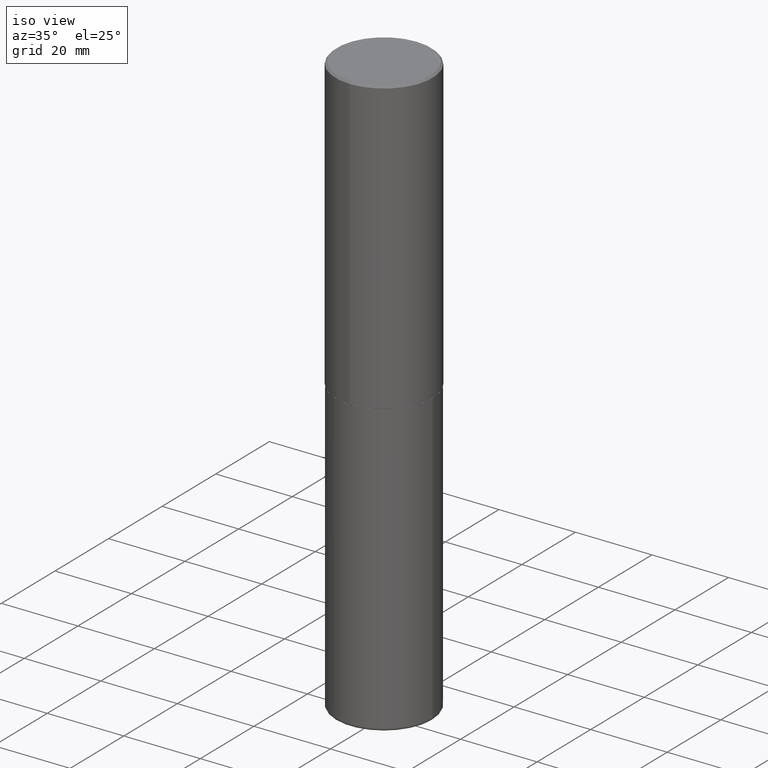
[diagram: clean part render]
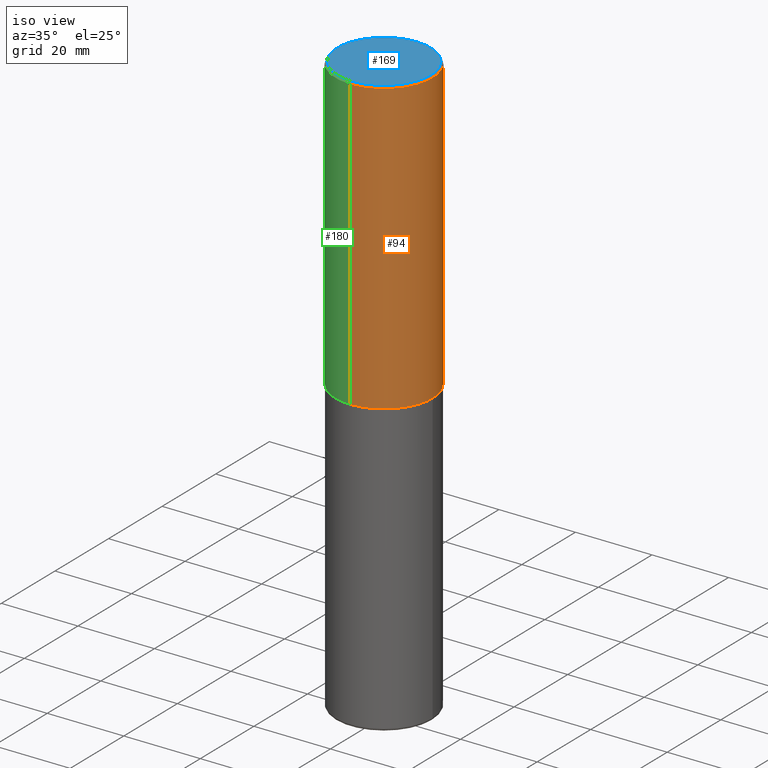
[diagram: same view with three faces highlighted in distinct colors, each labeled with its STEP entity id]
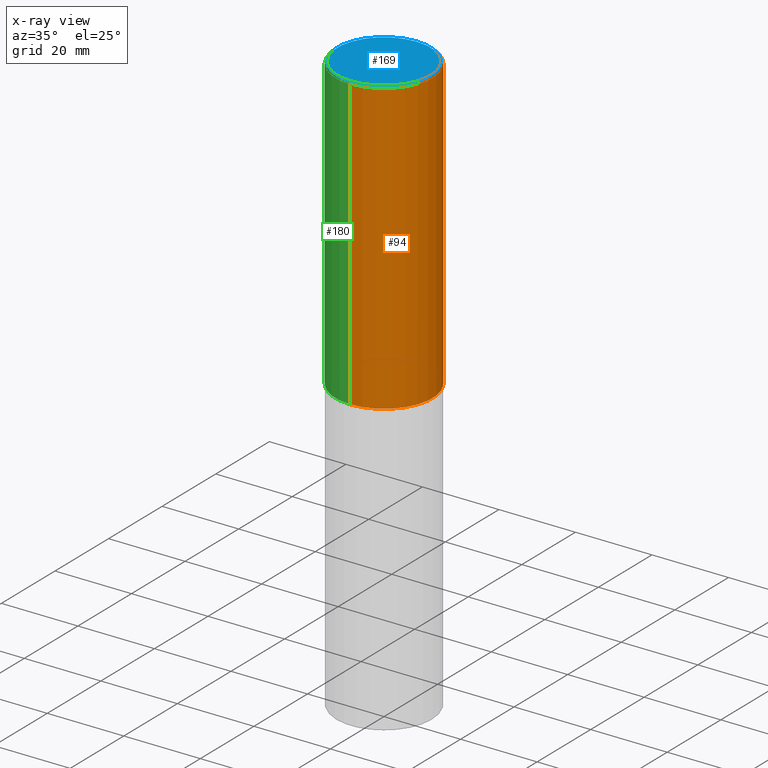
[diagram: x-ray of the same camera — body ghosted, the three highlighted faces saturated]
A machine part, iso view with three faces highlighted in distinct colors.
The next image is the same camera in x-ray (body ghosted, the three faces saturated) — at least one of them is partly hidden behind the body in this view.
Their STEP definitions:

[orange] entity #94 — the highlighted cylindrical surface (partial cylindrical patch) has radius 12.7 mm, axis along (-0, 0, 1).
#2 = CARTESIAN_POINT ( 'NONE',  ( -3.430248998885764992E-15, -0.5000000000000001110, -0.01999999999999835937 ) ) ;
#5 = CARTESIAN_POINT ( 'NONE',  ( 7.332249203065438921E-29, -1.047340385386834930E-14, -2.999000000000000554 ) ) ;
#16 = ORIENTED_EDGE ( 'NONE', *, *, #205, .T. ) ;
#36 = CARTESIAN_POINT ( 'NONE',  ( -3.491481338843133750E-15, -0.5000000000000001110, 1.746149358764313390E-15 ) ) ;
#39 = ORIENTED_EDGE ( 'NONE', *, *, #47, .F. ) ;
#46 = VECTOR ( 'NONE', #119, 39.37007874015748143 ) ;
#47 = EDGE_CURVE ( 'NONE', #320, #143, #68, .T. ) ;
#60 = CYLINDRICAL_SURFACE ( 'NONE', #149, 0.5000000000000001110 ) ;
#68 = CIRCLE ( 'NONE', #276, 0.5000000000000000000 ) ;
#69 = LINE ( 'NONE', #36, #309 ) ;
#78 = CARTESIAN_POINT ( 'NONE',  ( 4.889796067399450837E-31, -6.984597435057287381E-17, -0.02000000000000010797 ) ) ;
#94 = ADVANCED_FACE ( 'NONE', ( #151 ), #60, .T. ) ;
#100 = EDGE_LOOP ( 'NONE', ( #413, #16, #39, #353 ) ) ;
#119 = DIRECTION ( 'NONE',  ( -2.444898033699711931E-29, 3.492298717528626385E-15, 1.000000000000000000 ) ) ;
#121 = CARTESIAN_POINT ( 'NONE',  ( 3.491481338843133355E-15, 0.4999999999999999445, -0.02000000000000185310 ) ) ;
#126 = DIRECTION ( 'NONE',  ( -6.982962677686266711E-15, -1.000000000000000000, 3.278217592397114284E-15 ) ) ;
#143 = VERTEX_POINT ( 'NONE', #121 ) ;
#149 = AXIS2_PLACEMENT_3D ( 'NONE', #278, #345, #187 ) ;
#151 = FACE_OUTER_BOUND ( 'NONE', #100, .T. ) ;
#152 = CARTESIAN_POINT ( 'NONE',  ( -3.491481338843061569E-15, -0.5000000000000107692, -2.998999999999998778 ) ) ;
#187 = DIRECTION ( 'NONE',  ( -6.982962677686265922E-15, -1.000000000000000000, 3.492298717528625990E-15 ) ) ;
#198 = DIRECTION ( 'NONE',  ( -6.982962677686265922E-15, -1.000000000000000000, 3.491643216902136408E-15 ) ) ;
#202 = VERTEX_POINT ( 'NONE', #213 ) ;
#205 = EDGE_CURVE ( 'NONE', #202, #143, #314, .T. ) ;
#209 = DIRECTION ( 'NONE',  ( -2.444898033699712212E-29, 3.492298717528625990E-15, 1.000000000000000000 ) ) ;
#210 = AXIS2_PLACEMENT_3D ( 'NONE', #5, #376, #126 ) ;
#213 = CARTESIAN_POINT ( 'NONE',  ( 3.552713678800539584E-15, 0.4999999999999898970, -2.999000000000001886 ) ) ;
#222 = DIRECTION ( 'NONE',  ( -2.444898033699711931E-29, 3.492298717528626385E-15, 1.000000000000000000 ) ) ;
#224 = VERTEX_POINT ( 'NONE', #152 ) ;
#246 = CARTESIAN_POINT ( 'NONE',  ( 3.552713678800501718E-15, 0.5000000000000001110, -1.746149358764313390E-15 ) ) ;
#276 = AXIS2_PLACEMENT_3D ( 'NONE', #78, #209, #198 ) ;
#278 = CARTESIAN_POINT ( 'NONE',  ( 0.000000000000000000, 0.000000000000000000, 0.000000000000000000 ) ) ;
#299 = EDGE_CURVE ( 'NONE', #224, #320, #69, .T. ) ;
#309 = VECTOR ( 'NONE', #222, 39.37007874015748143 ) ;
#314 = LINE ( 'NONE', #246, #46 ) ;
#320 = VERTEX_POINT ( 'NONE', #2 ) ;
#331 = EDGE_CURVE ( 'NONE', #224, #202, #338, .T. ) ;
#338 = CIRCLE ( 'NONE', #210, 0.5000000000000002220 ) ;
#345 = DIRECTION ( 'NONE',  ( -2.444898033699712212E-29, 3.492298717528625990E-15, 1.000000000000000000 ) ) ;
#353 = ORIENTED_EDGE ( 'NONE', *, *, #299, .F. ) ;
#376 = DIRECTION ( 'NONE',  ( -2.444898033699712212E-29, 3.492298717528625990E-15, 1.000000000000000000 ) ) ;
#413 = ORIENTED_EDGE ( 'NONE', *, *, #331, .T. ) ;

[blue] entity #169 — the highlighted planar face has unit normal (0, -0, -1).
#17 = EDGE_CURVE ( 'NONE', #265, #194, #102, .T. ) ;
#32 = EDGE_LOOP ( 'NONE', ( #67, #328 ) ) ;
#35 = AXIS2_PLACEMENT_3D ( 'NONE', #50, #107, #233 ) ;
#50 = CARTESIAN_POINT ( 'NONE',  ( -2.514251026725007597E-45, 3.591362713352002573E-31, 1.028366415314403880E-16 ) ) ;
#52 = DIRECTION ( 'NONE',  ( -2.444898033699712212E-29, 3.492298717528625990E-15, 1.000000000000000000 ) ) ;
#67 = ORIENTED_EDGE ( 'NONE', *, *, #17, .T. ) ;
#88 = CARTESIAN_POINT ( 'NONE',  ( 3.351822085289407153E-15, 0.4799999999999999267, -1.624885063648019971E-15 ) ) ;
#90 = CARTESIAN_POINT ( 'NONE',  ( -3.361644018908049661E-15, -0.4799999999999999267, 1.779140025945180744E-15 ) ) ;
#102 = CIRCLE ( 'NONE', #35, 0.4799999999999999267 ) ;
#107 = DIRECTION ( 'NONE',  ( -2.444898033699712212E-29, 3.492298717528625990E-15, 1.000000000000000000 ) ) ;
#169 = ADVANCED_FACE ( 'NONE', ( #374 ), #340, .F. ) ;
#182 = DIRECTION ( 'NONE',  ( 2.444898033699711371E-29, -3.492298717528626385E-15, -1.000000000000000000 ) ) ;
#194 = VERTEX_POINT ( 'NONE', #90 ) ;
#199 = CIRCLE ( 'NONE', #282, 0.4799999999999999267 ) ;
#207 = EDGE_CURVE ( 'NONE', #194, #265, #199, .T. ) ;
#217 = AXIS2_PLACEMENT_3D ( 'NONE', #88, #182, #308 ) ;
#233 = DIRECTION ( 'NONE',  ( -6.982962677686265922E-15, -1.000000000000000000, 3.492298717528625990E-15 ) ) ;
#265 = VERTEX_POINT ( 'NONE', #348 ) ;
#282 = AXIS2_PLACEMENT_3D ( 'NONE', #373, #52, #342 ) ;
#308 = DIRECTION ( 'NONE',  ( 6.982962677686265922E-15, 1.000000000000000000, -3.492298717528626385E-15 ) ) ;
#328 = ORIENTED_EDGE ( 'NONE', *, *, #207, .T. ) ;
#340 = PLANE ( 'NONE',  #217 ) ;
#342 = DIRECTION ( 'NONE',  ( -6.982962677686265922E-15, -1.000000000000000000, 3.492298717528625990E-15 ) ) ;
#348 = CARTESIAN_POINT ( 'NONE',  ( 3.421651712066270057E-15, 0.4799999999999999267, -1.573466742882299844E-15 ) ) ;
#373 = CARTESIAN_POINT ( 'NONE',  ( -2.514251026725007597E-45, 3.591362713352002573E-31, 1.028366415314403880E-16 ) ) ;
#374 = FACE_OUTER_BOUND ( 'NONE', #32, .T. ) ;

[green] entity #180 — the highlighted cylindrical surface (partial cylindrical patch) has radius 12.7 mm, axis along (-0, 0, 1).
#2 = CARTESIAN_POINT ( 'NONE',  ( -3.430248998885764992E-15, -0.5000000000000001110, -0.01999999999999835937 ) ) ;
#13 = AXIS2_PLACEMENT_3D ( 'NONE', #179, #369, #334 ) ;
#23 = CARTESIAN_POINT ( 'NONE',  ( 0.000000000000000000, 0.000000000000000000, 0.000000000000000000 ) ) ;
#30 = EDGE_CURVE ( 'NONE', #202, #224, #193, .T. ) ;
#36 = CARTESIAN_POINT ( 'NONE',  ( -3.491481338843133750E-15, -0.5000000000000001110, 1.746149358764313390E-15 ) ) ;
#46 = VECTOR ( 'NONE', #119, 39.37007874015748143 ) ;
#65 = ORIENTED_EDGE ( 'NONE', *, *, #205, .F. ) ;
#69 = LINE ( 'NONE', #36, #309 ) ;
#80 = EDGE_CURVE ( 'NONE', #143, #320, #111, .T. ) ;
#87 = DIRECTION ( 'NONE',  ( -6.982962677686265922E-15, -1.000000000000000000, 3.491643216902136408E-15 ) ) ;
#111 = CIRCLE ( 'NONE', #290, 0.5000000000000000000 ) ;
#114 = ORIENTED_EDGE ( 'NONE', *, *, #30, .T. ) ;
#117 = FACE_OUTER_BOUND ( 'NONE', #382, .T. ) ;
#119 = DIRECTION ( 'NONE',  ( -2.444898033699711931E-29, 3.492298717528626385E-15, 1.000000000000000000 ) ) ;
#121 = CARTESIAN_POINT ( 'NONE',  ( 3.491481338843133355E-15, 0.4999999999999999445, -0.02000000000000185310 ) ) ;
#127 = ORIENTED_EDGE ( 'NONE', *, *, #80, .F. ) ;
#143 = VERTEX_POINT ( 'NONE', #121 ) ;
#152 = CARTESIAN_POINT ( 'NONE',  ( -3.491481338843061569E-15, -0.5000000000000107692, -2.998999999999998778 ) ) ;
#177 = DIRECTION ( 'NONE',  ( -2.444898033699712212E-29, 3.492298717528625990E-15, 1.000000000000000000 ) ) ;
#179 = CARTESIAN_POINT ( 'NONE',  ( 7.332249203065438921E-29, -1.047340385386834930E-14, -2.999000000000000554 ) ) ;
#180 = ADVANCED_FACE ( 'NONE', ( #117 ), #406, .T. ) ;
#193 = CIRCLE ( 'NONE', #13, 0.5000000000000002220 ) ;
#202 = VERTEX_POINT ( 'NONE', #213 ) ;
#205 = EDGE_CURVE ( 'NONE', #202, #143, #314, .T. ) ;
#213 = CARTESIAN_POINT ( 'NONE',  ( 3.552713678800539584E-15, 0.4999999999999898970, -2.999000000000001886 ) ) ;
#222 = DIRECTION ( 'NONE',  ( -2.444898033699711931E-29, 3.492298717528626385E-15, 1.000000000000000000 ) ) ;
#224 = VERTEX_POINT ( 'NONE', #152 ) ;
#242 = CARTESIAN_POINT ( 'NONE',  ( 4.889796067399450837E-31, -6.984597435057287381E-17, -0.02000000000000010797 ) ) ;
#244 = DIRECTION ( 'NONE',  ( -2.444898033699712212E-29, 3.492298717528625990E-15, 1.000000000000000000 ) ) ;
#246 = CARTESIAN_POINT ( 'NONE',  ( 3.552713678800501718E-15, 0.5000000000000001110, -1.746149358764313390E-15 ) ) ;
#290 = AXIS2_PLACEMENT_3D ( 'NONE', #242, #177, #87 ) ;
#298 = ORIENTED_EDGE ( 'NONE', *, *, #299, .T. ) ;
#299 = EDGE_CURVE ( 'NONE', #224, #320, #69, .T. ) ;
#309 = VECTOR ( 'NONE', #222, 39.37007874015748143 ) ;
#314 = LINE ( 'NONE', #246, #46 ) ;
#320 = VERTEX_POINT ( 'NONE', #2 ) ;
#334 = DIRECTION ( 'NONE',  ( -6.982962677686266711E-15, -1.000000000000000000, 3.278217592397114284E-15 ) ) ;
#356 = AXIS2_PLACEMENT_3D ( 'NONE', #23, #244, #371 ) ;
#369 = DIRECTION ( 'NONE',  ( -2.444898033699712212E-29, 3.492298717528625990E-15, 1.000000000000000000 ) ) ;
#371 = DIRECTION ( 'NONE',  ( -6.982962677686265922E-15, -1.000000000000000000, 3.492298717528625990E-15 ) ) ;
#382 = EDGE_LOOP ( 'NONE', ( #65, #114, #298, #127 ) ) ;
#406 = CYLINDRICAL_SURFACE ( 'NONE', #356, 0.5000000000000001110 ) ;